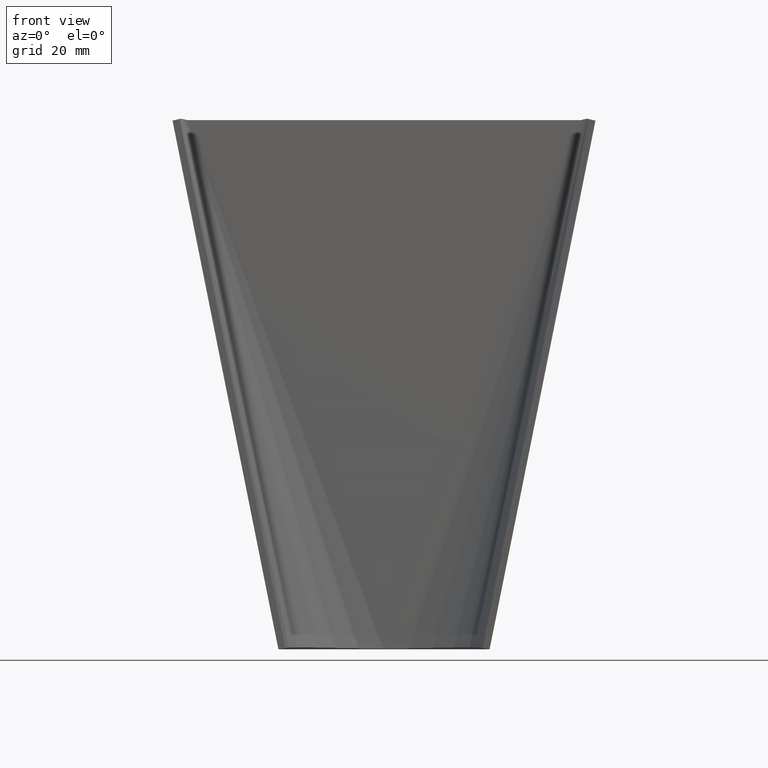
[diagram: clean part render]
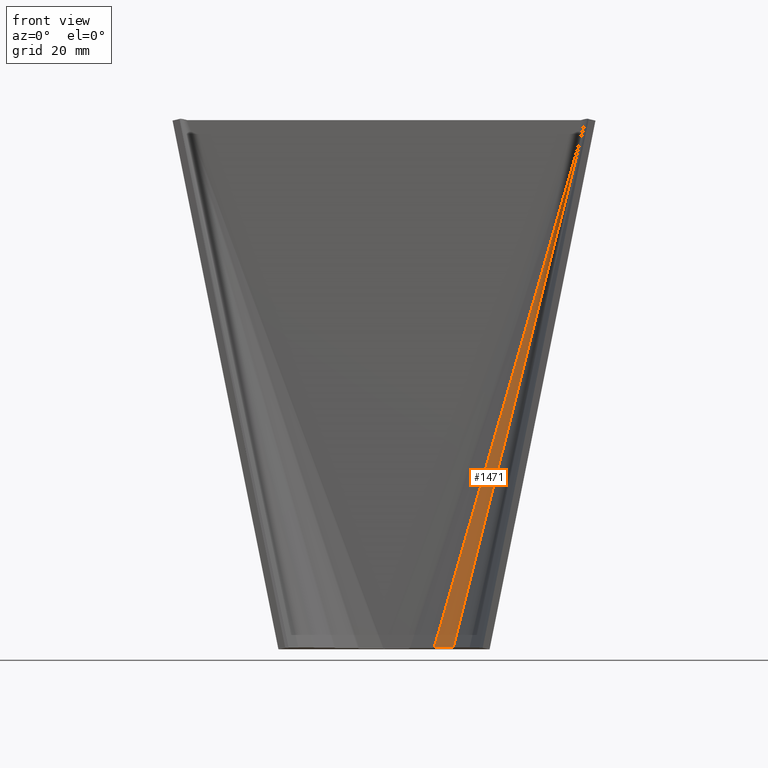
[diagram: same view with one face highlighted and labeled with its STEP entity id]
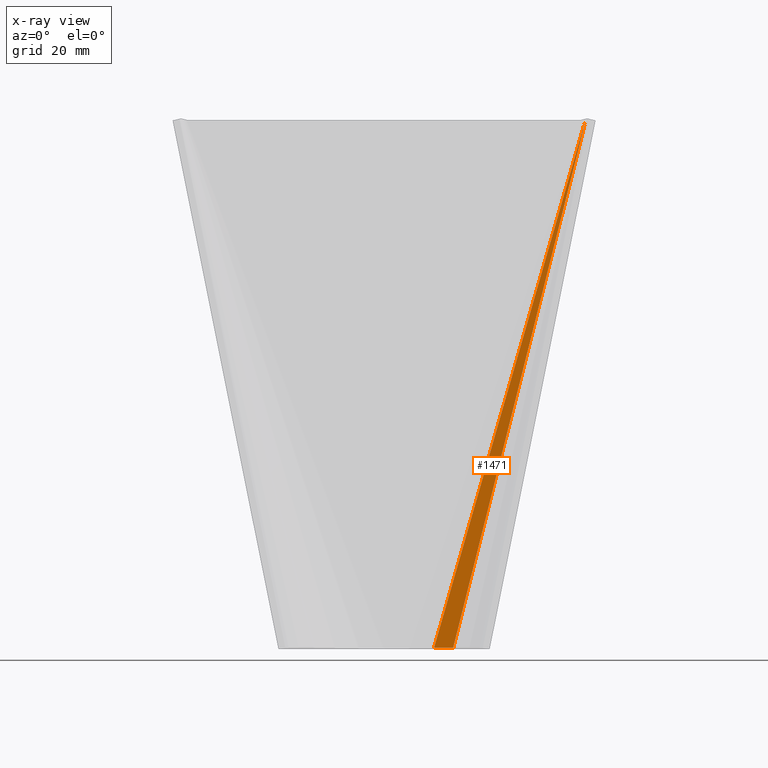
[diagram: x-ray of the same camera — body ghosted, the highlighted face saturated]
A machine part, front view. The second image highlights one B-rep face of the part: STEP entity #1471.
The next image is the same camera in x-ray: the body ghosted, the highlighted face saturated — about 0% of this face is hidden behind the body in this view.
In plain terms, the highlighted planar face has unit normal (0.5911, 0.7704, -0.2389).
Its self-contained STEP definition (entity closure, byte-faithful):
#172=FACE_OUTER_BOUND($,#281,.T.);
#281=EDGE_LOOP($,(#1037,#1038,#1039));
#404=LINE($,#2203,#552);
#405=LINE($,#2206,#553);
#406=LINE($,#2207,#554);
#552=VECTOR($,#1771,156.637440223747);
#553=VECTOR($,#1774,6.78434508626671);
#554=VECTOR($,#1775,155.657539037863);
#697=VERTEX_POINT($,#2199);
#698=VERTEX_POINT($,#2201);
#699=VERTEX_POINT($,#2205);
#814=EDGE_CURVE($,#697,#698,#404,.T.);
#815=EDGE_CURVE($,#699,#698,#405,.T.);
#816=EDGE_CURVE($,#697,#699,#406,.T.);
#1037=ORIENTED_EDGE($,*,*,#814,.T.);
#1038=ORIENTED_EDGE($,*,*,#815,.F.);
#1039=ORIENTED_EDGE($,*,*,#816,.F.);
#1415=PLANE($,#1589);
#1471=ADVANCED_FACE($,(#172),#1415,.F.);
#1589=AXIS2_PLACEMENT_3D($,#2204,#1772,#1773);
#1771=DIRECTION($,(-0.274847556163134,-0.0860947638982126,-0.957625455227911));
#1772=DIRECTION('center_axis',(0.59113116297554,0.770377130266854,-0.238920541856475));
#1773=DIRECTION('ref_axis',(-0.374725308245156,0.,-0.927135881821307));
#1774=DIRECTION($,(-0.793353340291236,0.60876142900872,0.));
#1775=DIRECTION($,(-0.241999424159628,-0.113169661759865,-0.963653934959831));
#2199=CARTESIAN_POINT('',(57.290889118896,37.6020635634988,0.477841083712949));
#2201=CARTESIAN_POINT('',(14.2394714697503,24.116400129815,-149.522158916287));
#2203=CARTESIAN_POINT($,(57.290889118896,37.6020635634988,0.47784108371295));
#2204=CARTESIAN_POINT('Origin',(57.290889118896,37.6020635634988,0.47784108371295));
#2205=CARTESIAN_POINT('',(19.6218543056284,19.9863525202109,-149.522158916287));
#2206=CARTESIAN_POINT($,(20.0309411096453,19.6724491750627,-149.522158916287));
#2207=CARTESIAN_POINT($,(57.290889118896,37.6020635634988,0.47784108371295));